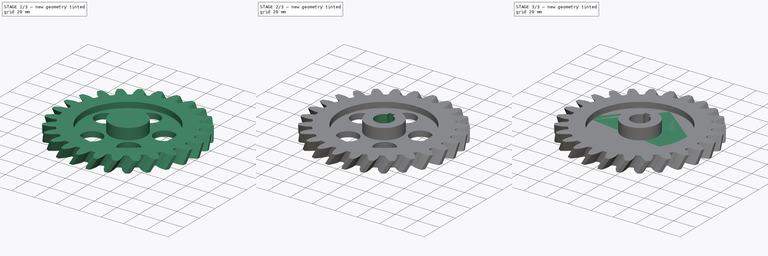
[diagram: build sequence overview — one tinted view per stage of 3, left to right]
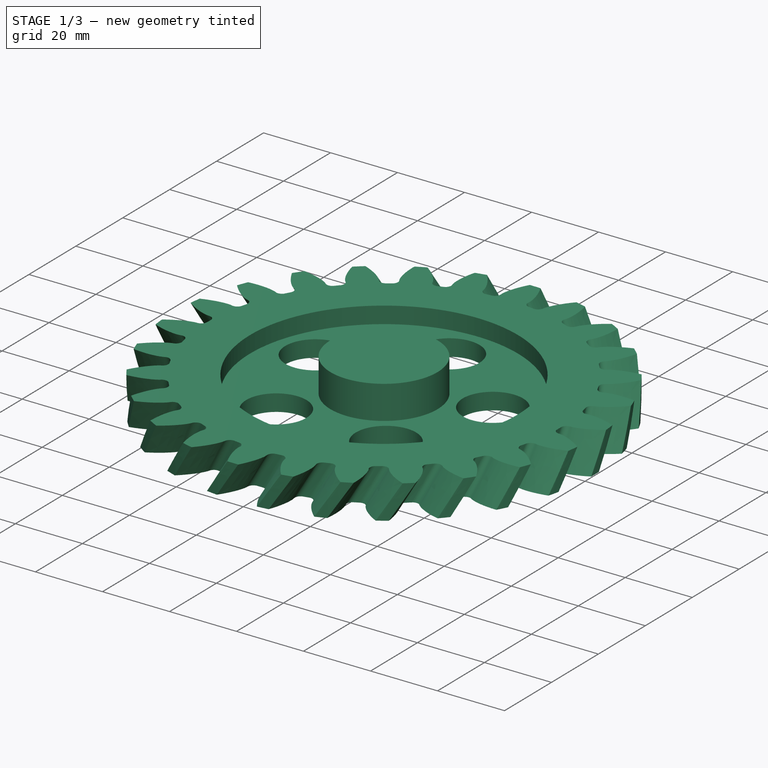
[diagram: stage 1 of 3 — iso view after this stage's code; geometry added in this stage tinted green]
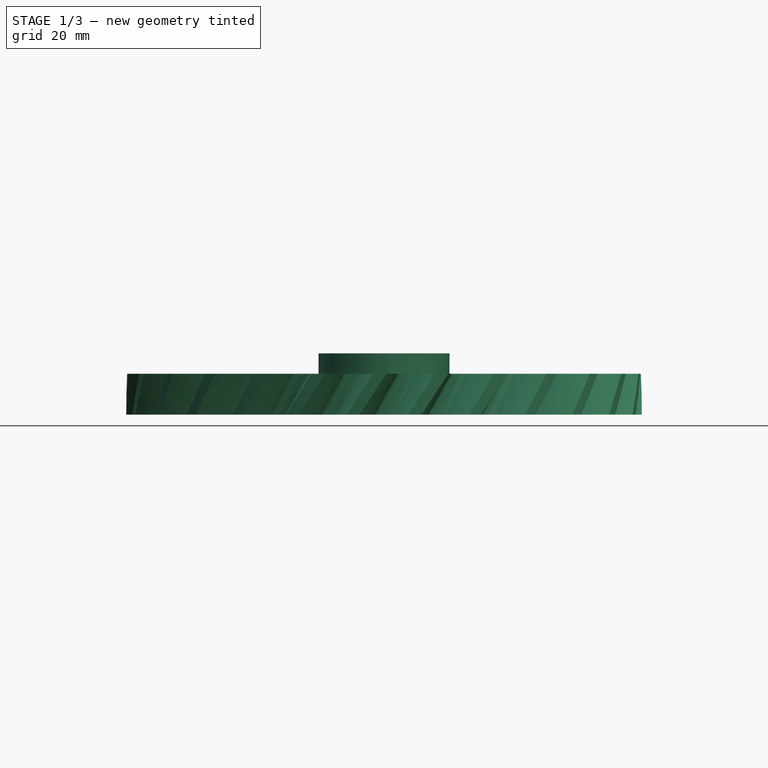
[diagram: stage 1 of 3 — front view after this stage's code; geometry added in this stage tinted green]
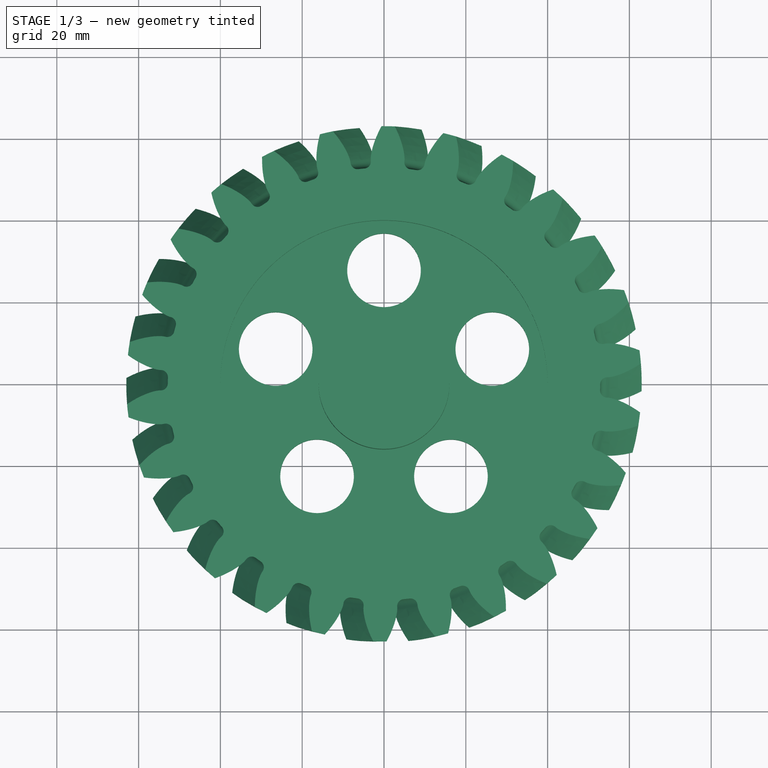
[diagram: stage 1 of 3 — top view after this stage's code; geometry added in this stage tinted green]
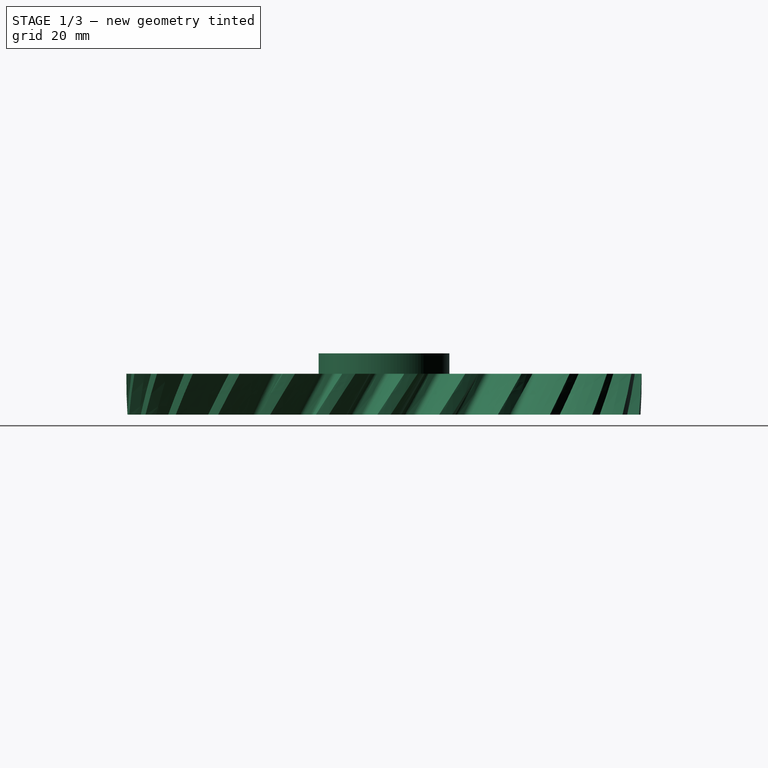
[diagram: stage 1 of 3 — right view after this stage's code; geometry added in this stage tinted green]
FCSTD DOCUMENT  (FreeCAD 0.16R6707 (Git))
Label: Engranaje
License: All rights reserved
LicenseURL: http://en.wikipedia.org/wiki/All_rights_reserved
objects: Sketcher::SketchObject×3, PartDesign::Pocket×2, Part::Part2DObjectPython×1, Part::Helix×1, Part::Sweep×1, PartDesign::PolarPattern×1, PartDesign::Pad×1
note: 13 computed .brp shape members not serialized (recipe doc carries the construction recipe); baked Part::Feature solids carry a one-line shape summary decoded from their .brp

FEATURE [PartDesign::PolarPattern] PolarPattern  label="Vaciados_Pequeños"
  Angle = 360
  Occurrences = 5
FEATURE [Sketcher::SketchObject] Sketch002
  Placement = pos=(-3.98051e-06,-4.18214e-07,5) rot=(0,0,1;0rad)
  Support = -> PolarPattern [Face269]
  sketch-geometry (1):
    g0: Circle CenterX=0 CenterY=0 CenterZ=0 NormalX=0 NormalY=0 NormalZ=1 Radius=16
  constraints (2):
    c: Coincident(g0,g-1)
    c: Radius(g0) = 16
FEATURE [PartDesign::Pad] Pad  label="Eje_central"
  Length = 10
  Length2 = 100
  Sketch = -> Sketch002
  Type = 0
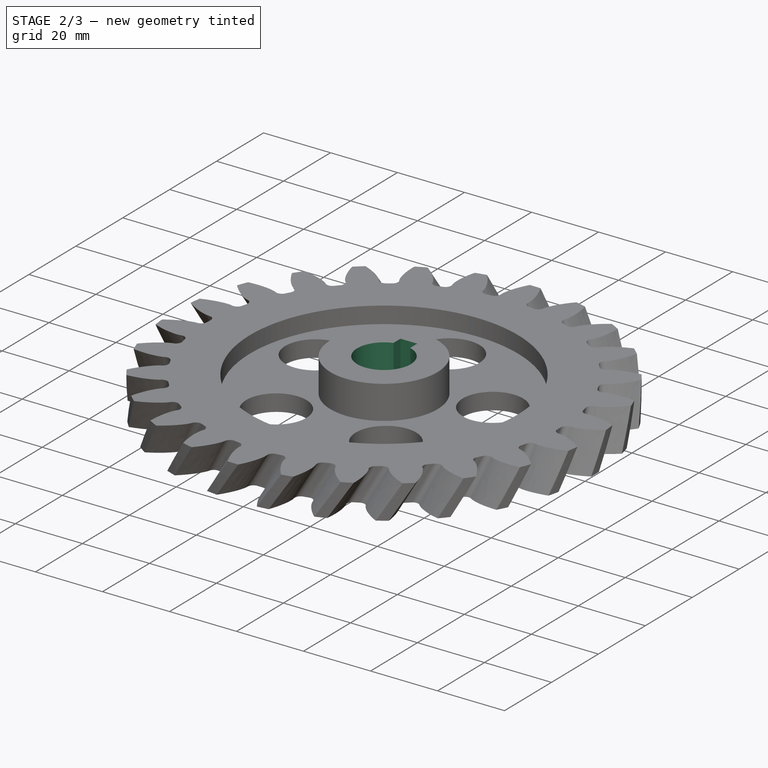
[diagram: stage 2 of 3 — iso view after this stage's code; geometry added in this stage tinted green]
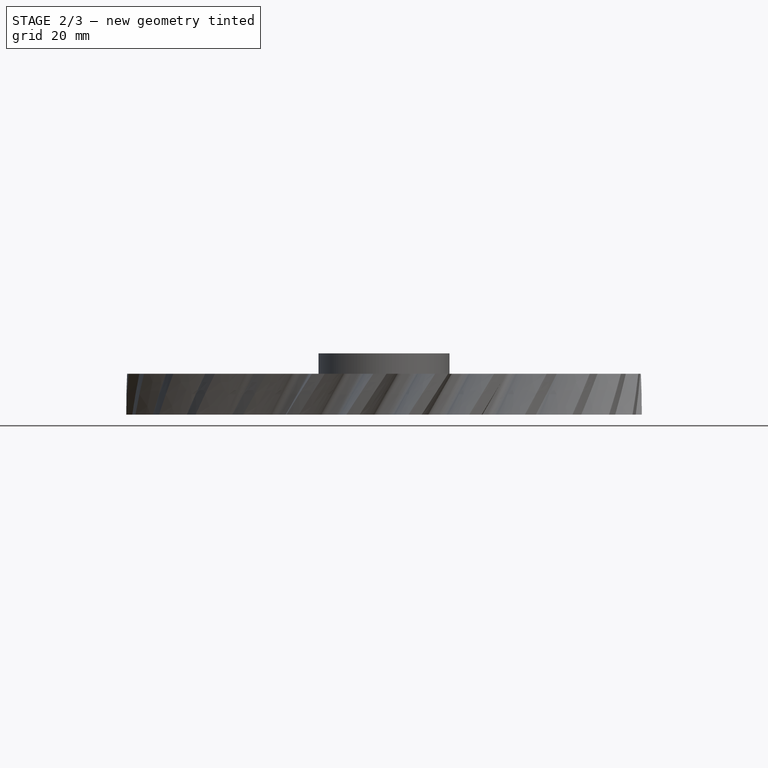
[diagram: stage 2 of 3 — front view after this stage's code; geometry added in this stage tinted green]
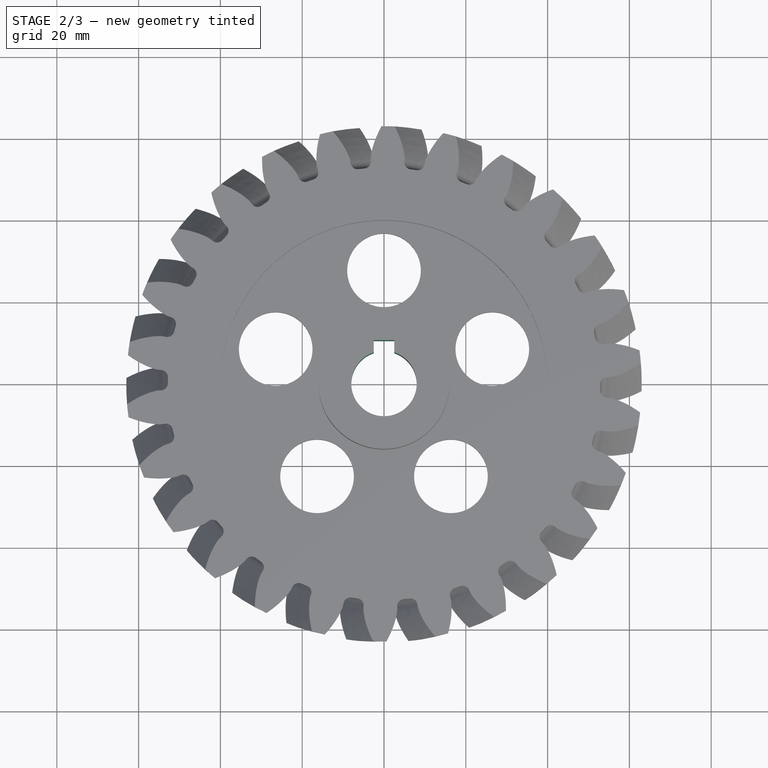
[diagram: stage 2 of 3 — top view after this stage's code; geometry added in this stage tinted green]
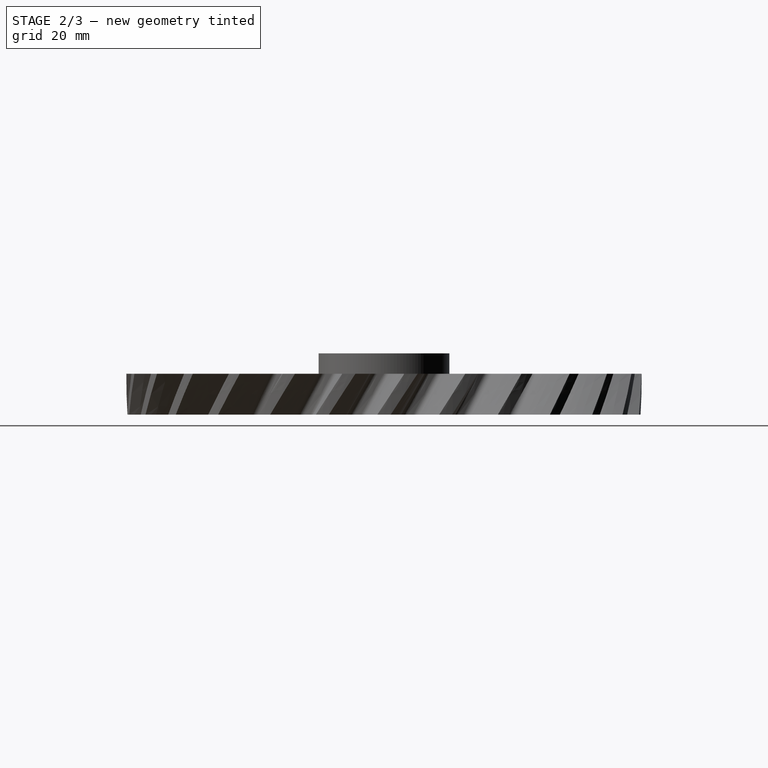
[diagram: stage 2 of 3 — right view after this stage's code; geometry added in this stage tinted green]
FEATURE [Sketcher::SketchObject] Sketch003
  Placement = pos=(-1.19415e-05,-1.25464e-06,15) rot=(0,0,1;0rad)
  Support = -> Pad [Face1]
  sketch-geometry (4):
    g0: ArcOfCircle CenterX=0 CenterY=0 CenterZ=0 NormalX=0 NormalY=0 NormalZ=1 Radius=8 StartAngle=1.88862 EndAngle=7.53616
    g1: LineSegment StartX=2.5 StartY=7.59934 StartZ=0 EndX=2.5 EndY=10.5993 EndZ=0
    g2: LineSegment StartX=2.5 StartY=10.5993 StartZ=0 EndX=-2.5 EndY=10.5993 EndZ=0
    g3: LineSegment StartX=-2.5 StartY=10.5993 StartZ=0 EndX=-2.5 EndY=7.59934 EndZ=0
  constraints (10):
    c: Coincident(g0,g-1)
    c: Coincident(g1,g2)
    c: Coincident(g2,g3)
    c: Horizontal(g2)
    c: Vertical(g1)
    c: Vertical(g3)
    c: PointOnObject(g3,g0)
    c: Radius(g0) = 8
    c: DistanceX(g2,g2) = 5
    c: DistanceY(g1,g1) = 3
FEATURE [PartDesign::Pocket] Pocket002  label="Eje_Final"
  Length = 5
  Sketch = -> Sketch003
  Type = 1
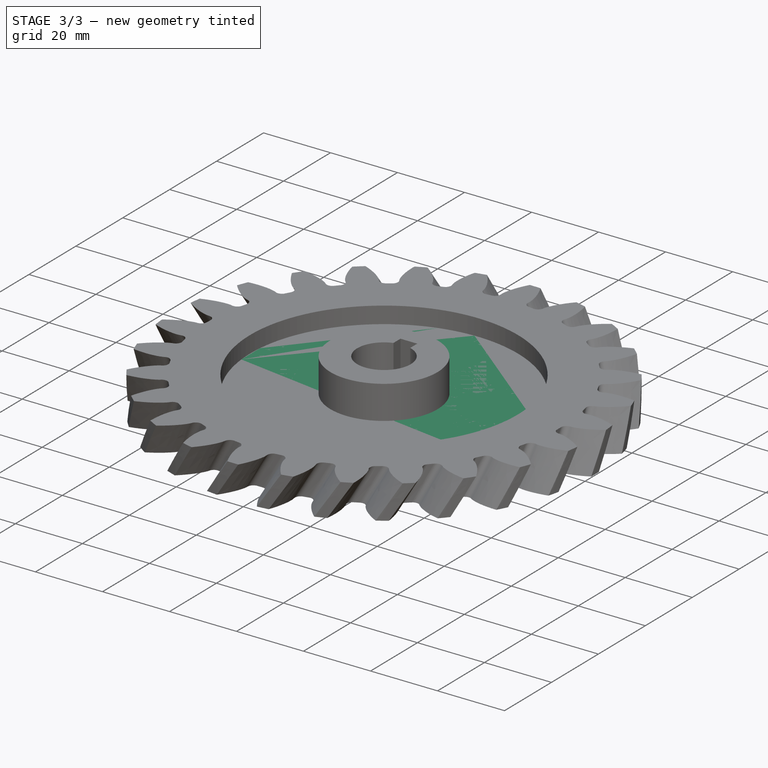
[diagram: stage 3 of 3 — iso view after this stage's code; geometry added in this stage tinted green]
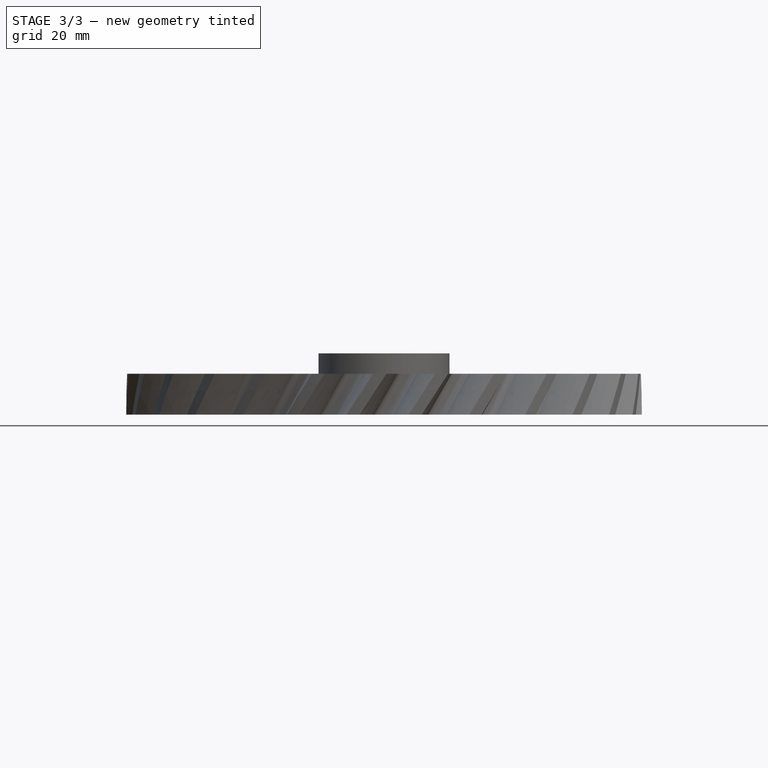
[diagram: stage 3 of 3 — front view after this stage's code; geometry added in this stage tinted green]
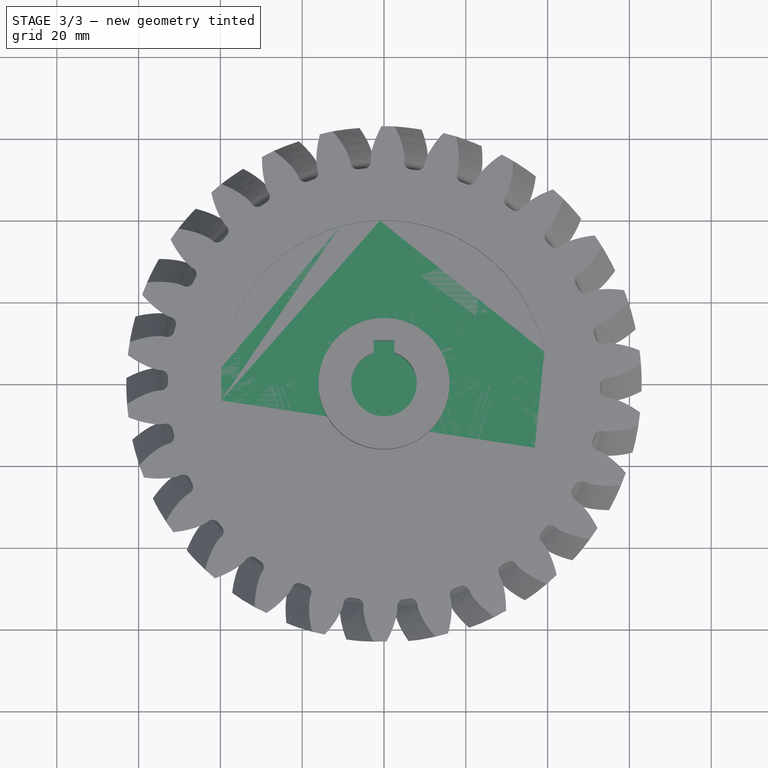
[diagram: stage 3 of 3 — top view after this stage's code; geometry added in this stage tinted green]
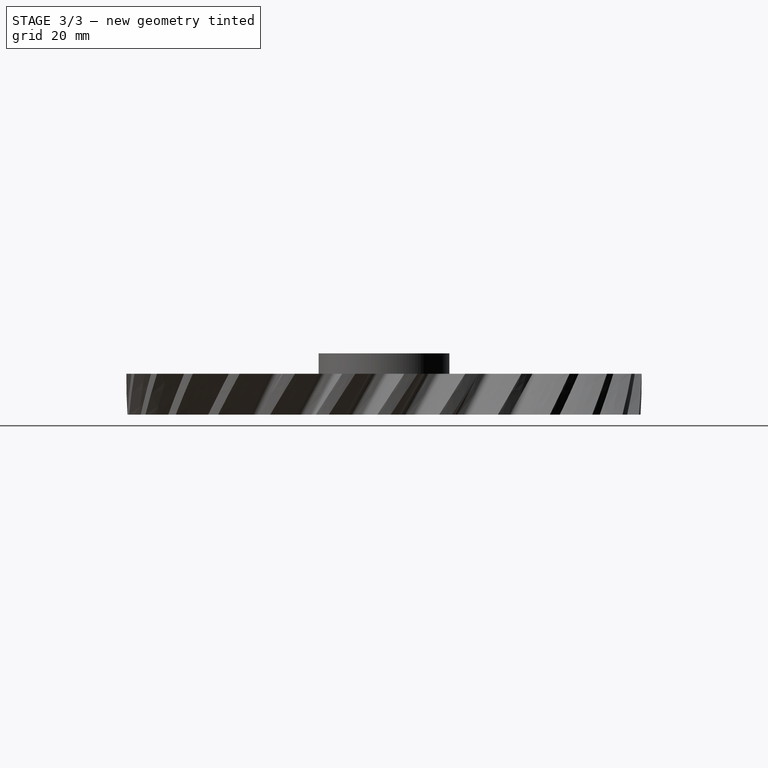
[diagram: stage 3 of 3 — right view after this stage's code; geometry added in this stage tinted green]
FEATURE [Part::Part2DObjectPython] InvoluteGear  # Draft 2D object (typed FeaturePython)
  ExternalGear = true
  HighPrecision = true
  Modules = 4.5
  NumberOfTeeth = 26
  PressureAngle = 20
FEATURE [Part::Helix] Helix  label="Espiral"
  Angle = 0
  Height = 10
  LocalCoord = 0
  Pitch = 600
  Radius = 1
  Style = 1
FEATURE [Part::Sweep] Sweep  label="Engranaje"
  Frenet = true
  Sections = -> [InvoluteGear]
  Solid = true
  Spine = -> Helix [Edge1]
  Transition = 1
FEATURE [Sketcher::SketchObject] Sketch
  Placement = pos=(-7.96102e-06,-8.36429e-07,10) rot=(0,0,1;0rad)
  Support = -> Sweep [Face262]
  sketch-geometry (1):
    g0: Circle CenterX=0 CenterY=0 CenterZ=0 NormalX=0 NormalY=0 NormalZ=1 Radius=40
  constraints (2):
    c: Coincident(g0,g-1)
    c: Radius(g0) = 40
FEATURE [PartDesign::Pocket] Pocket  label="Vaciado_Grande"
  Length = 5
  Sketch = -> Sketch
  Type = 0
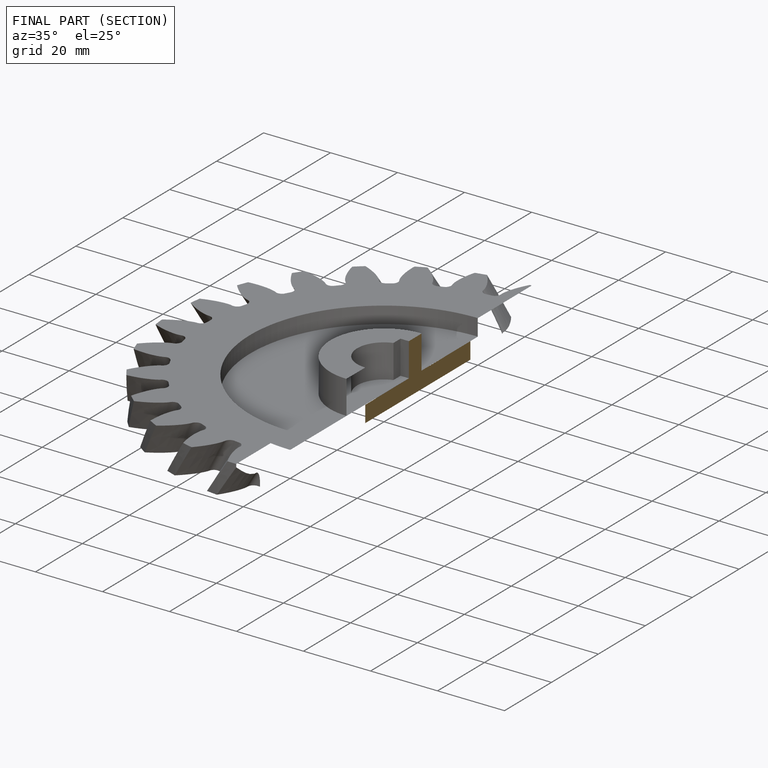
[diagram: finished part — half-section view (interior)]
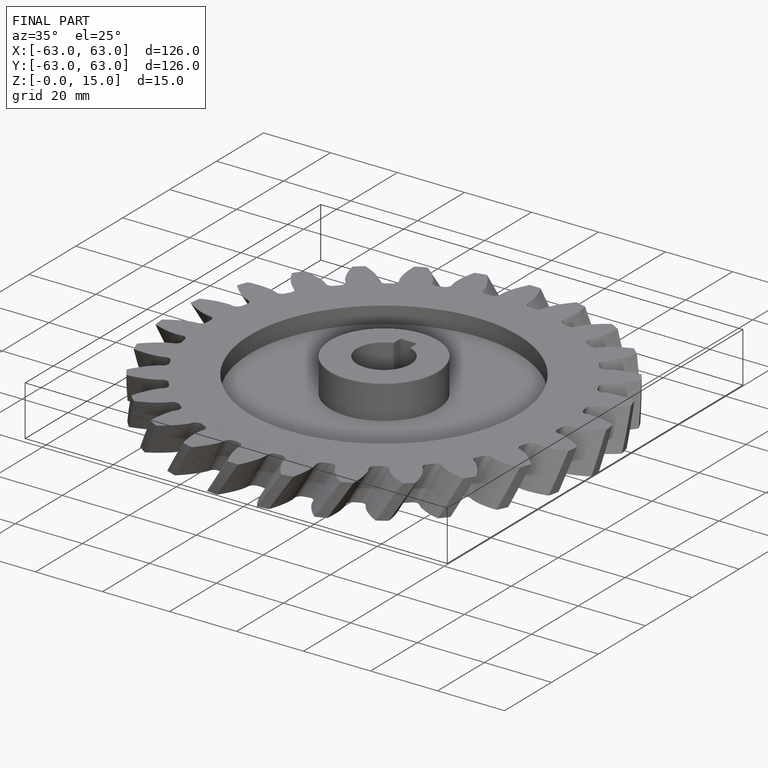
[diagram: finished part — iso view with bounding-box wireframe]
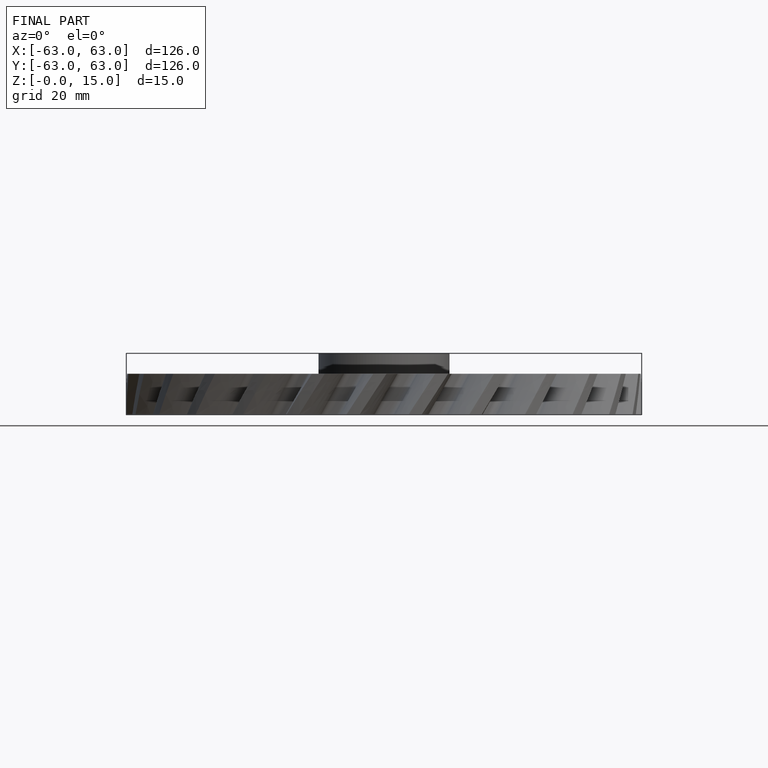
[diagram: finished part — front view with bounding-box wireframe]
